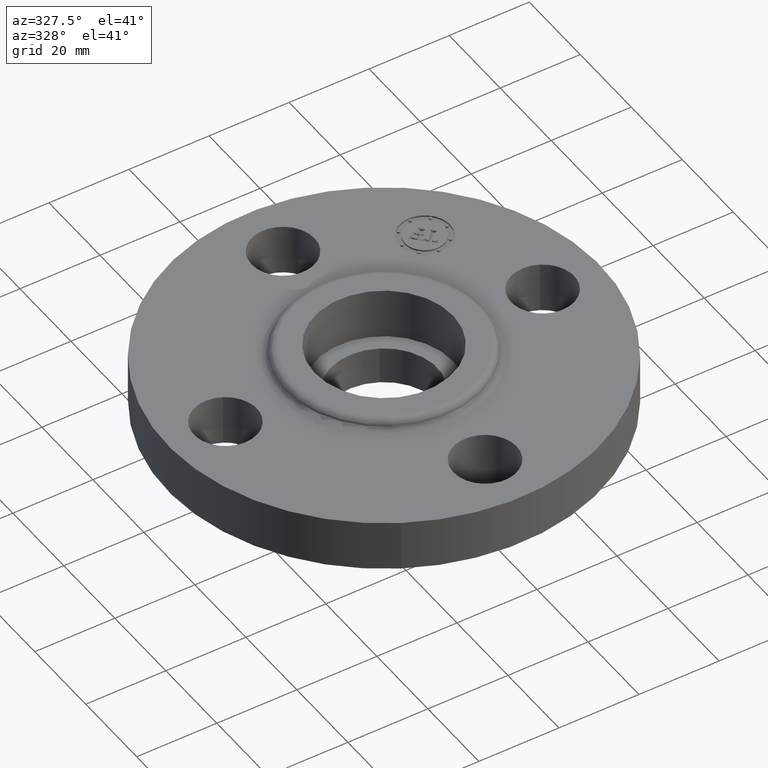
[diagram: clean part render]
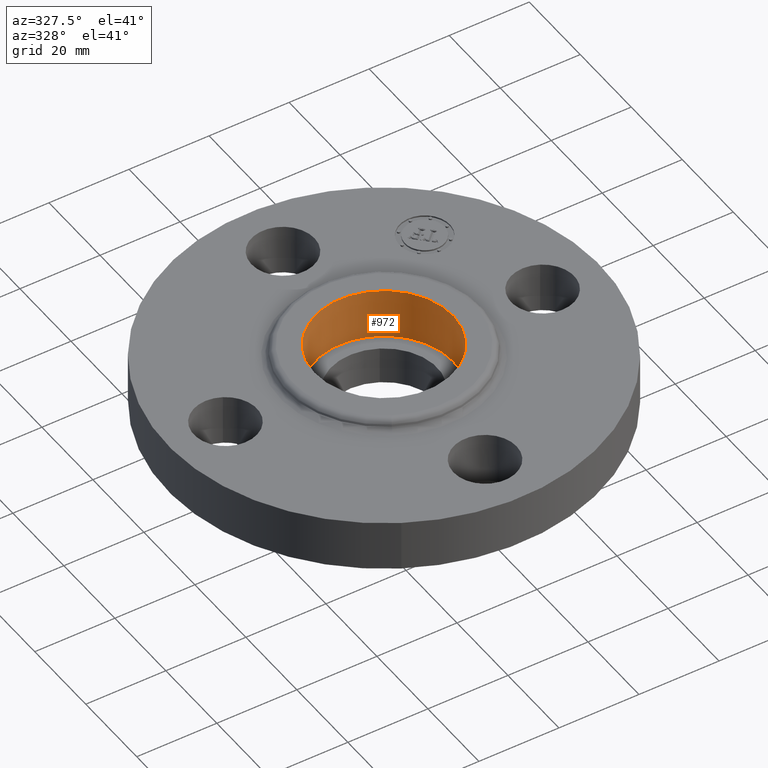
[diagram: same view with one face highlighted and labeled with its STEP entity id]
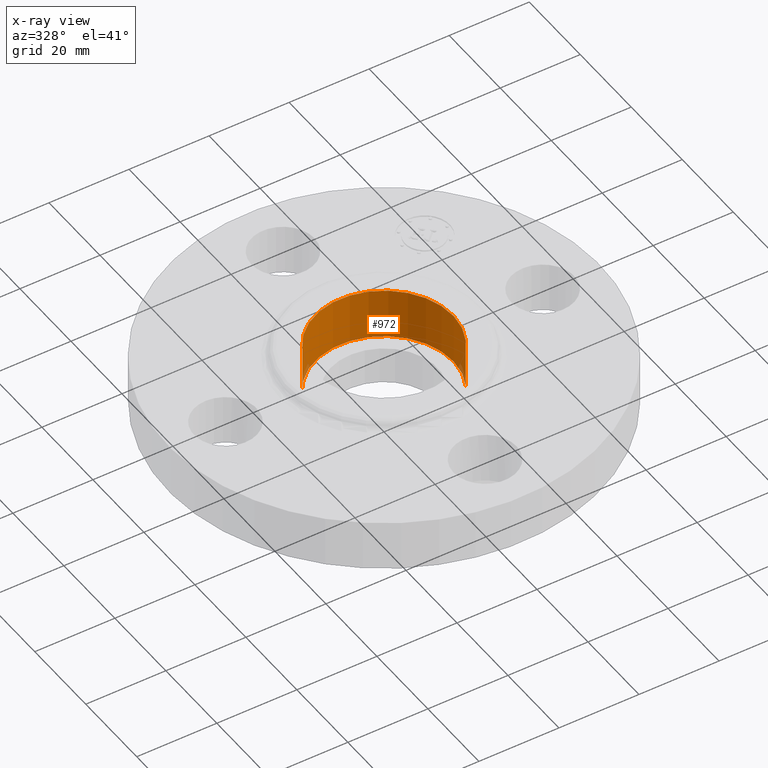
[diagram: x-ray of the same camera — body ghosted, the highlighted face saturated]
A machine part, auxiliary view. The second image highlights one B-rep face of the part: STEP entity #972.
The next image is the same camera in x-ray: the body ghosted, the highlighted face saturated — about 1% of this face is hidden behind the body in this view.
In plain terms, the highlighted cylindrical surface (partial cylindrical patch) has radius 17.272 mm, axis along (0, 0, -1).
Its self-contained STEP definition (entity closure, byte-faithful):
#42=AXIS2_PLACEMENT_3D('Circle Axis2P3D',#40,#41,$) ;
#905=AXIS2_PLACEMENT_3D('Circle Axis2P3D',#903,#904,$) ;
#954=AXIS2_PLACEMENT_3D('Cylinder Axis2P3D',#951,#952,#953) ;
#40=CARTESIAN_POINT('Axis2P3D Location',(1.04902962957E-016,-6.99353086378E-017,0.12)) ;
#44=CARTESIAN_POINT('Vertex',(-0.596756142088,0.326009366252,0.12)) ;
#46=CARTESIAN_POINT('Vertex',(0.596756142088,-0.326009366252,0.12)) ;
#903=CARTESIAN_POINT('Axis2P3D Location',(1.04902962957E-016,-1.39870617276E-016,0.620000000002)) ;
#907=CARTESIAN_POINT('Vertex',(-0.596756142088,0.326009366252,0.620000000002)) ;
#909=CARTESIAN_POINT('Vertex',(0.596756142088,-0.326009366252,0.620000000002)) ;
#951=CARTESIAN_POINT('Axis2P3D Location',(1.04902962957E-016,-6.99353086378E-017,0.616062992128)) ;
#956=CARTESIAN_POINT('Line Origine',(-0.596756142088,0.326009366252,0.370000000001)) ;
#961=CARTESIAN_POINT('Line Origine',(0.596756142088,-0.326009366252,0.370000000001)) ;
#41=DIRECTION('Axis2P3D Direction',(0.,0.,-0.0393700787402)) ;
#904=DIRECTION('Axis2P3D Direction',(0.,0.,-0.0393700787402)) ;
#952=DIRECTION('Axis2P3D Direction',(0.,0.,-0.0393700787402)) ;
#953=DIRECTION('Axis2P3D XDirection',(0.0345504945626,-0.0188750212049,0.)) ;
#957=DIRECTION('Vector Direction',(0.,0.,-0.0393700787402)) ;
#962=DIRECTION('Vector Direction',(0.,0.,-0.0393700787402)) ;
#958=VECTOR('Line Direction',#957,0.0393700787402) ;
#963=VECTOR('Line Direction',#962,0.0393700787402) ;
#967=ORIENTED_EDGE('',*,*,#911,.F.) ;
#968=ORIENTED_EDGE('',*,*,#960,.F.) ;
#969=ORIENTED_EDGE('',*,*,#48,.T.) ;
#970=ORIENTED_EDGE('',*,*,#965,.T.) ;
#972=ADVANCED_FACE('PartBody',(#971),#955,.F.) ;
#43=CIRCLE('generated circle',#42,0.680000000003) ;
#906=CIRCLE('generated circle',#905,0.680000000003) ;
#955=CYLINDRICAL_SURFACE('generated cylinder',#954,0.680000000003) ;
#48=EDGE_CURVE('',#45,#47,#43,.T.) ;
#911=EDGE_CURVE('',#908,#910,#906,.T.) ;
#960=EDGE_CURVE('',#45,#908,#959,.F.) ;
#965=EDGE_CURVE('',#47,#910,#964,.F.) ;
#966=EDGE_LOOP('',(#967,#968,#969,#970)) ;
#971=FACE_OUTER_BOUND('',#966,.T.) ;
#959=LINE('Line',#956,#958) ;
#964=LINE('Line',#961,#963) ;
#45=VERTEX_POINT('',#44) ;
#47=VERTEX_POINT('',#46) ;
#908=VERTEX_POINT('',#907) ;
#910=VERTEX_POINT('',#909) ;